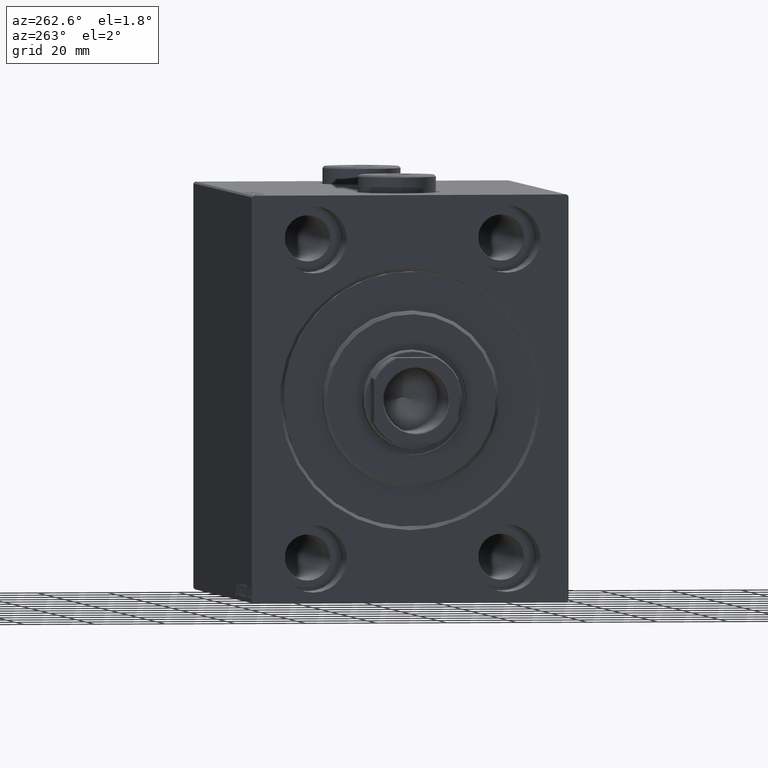
[diagram: clean part render]
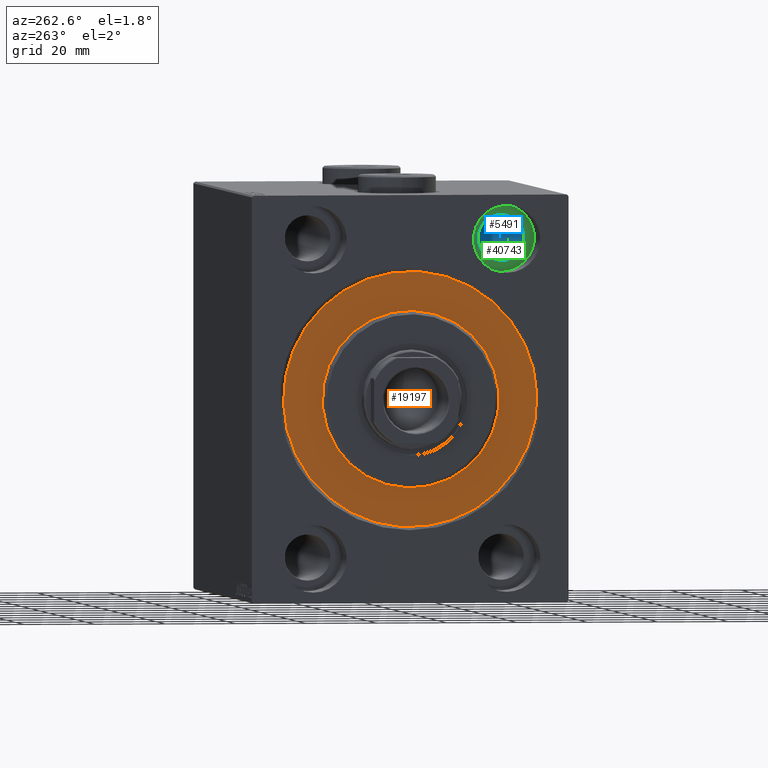
[diagram: same view with three faces highlighted in distinct colors, each labeled with its STEP entity id]
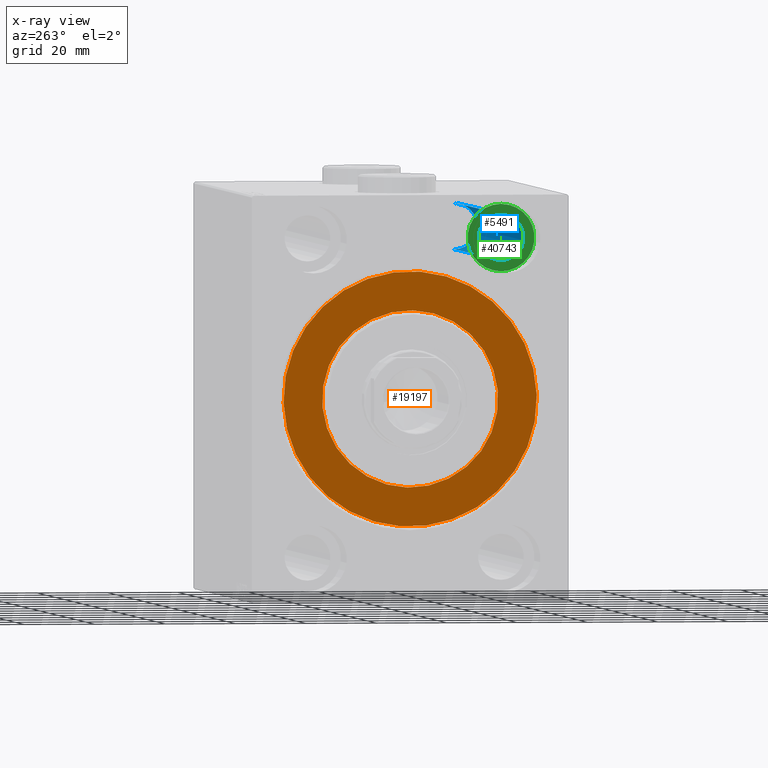
[diagram: x-ray of the same camera — body ghosted, the three highlighted faces saturated]
A machine part, auxiliary view with three faces highlighted in distinct colors.
The next image is the same camera in x-ray (body ghosted, the three faces saturated) — at least one of them is partly hidden behind the body in this view.
Their STEP definitions:

[orange] entity #19197 — the highlighted planar face has unit normal (1, 0, -0).
#1351 = CARTESIAN_POINT ( 'NONE',  ( 0.000000000000000000, 0.000000000000000000, -36.00000000000000000 ) ) ;
#1831 = EDGE_LOOP ( 'NONE', ( #44657, #4949 ) ) ;
#3849 = AXIS2_PLACEMENT_3D ( 'NONE', #42676, #25027, #25259 ) ;
#4949 = ORIENTED_EDGE ( 'NONE', *, *, #32871, .F. ) ;
#5187 = CIRCLE ( 'NONE', #24933, 36.00000000000000000 ) ;
#5871 = ORIENTED_EDGE ( 'NONE', *, *, #9018, .F. ) ;
#7897 = CARTESIAN_POINT ( 'NONE',  ( 0.000000000000000000, 0.000000000000000000, 0.000000000000000000 ) ) ;
#9018 = EDGE_CURVE ( 'NONE', #30583, #28210, #41921, .T. ) ;
#10631 = VERTEX_POINT ( 'NONE', #16671 ) ;
#10942 = CIRCLE ( 'NONE', #35850, 36.00000000000000000 ) ;
#11815 = CARTESIAN_POINT ( 'NONE',  ( 0.000000000000000000, 0.000000000000000000, 0.000000000000000000 ) ) ;
#16390 = CARTESIAN_POINT ( 'NONE',  ( 0.000000000000000000, 0.000000000000000000, 0.000000000000000000 ) ) ;
#16671 = CARTESIAN_POINT ( 'NONE',  ( 0.000000000000000000, 4.408728476930470856E-15, 36.00000000000000000 ) ) ;
#17734 = DIRECTION ( 'NONE',  ( -1.000000000000000000, 0.000000000000000000, 0.000000000000000000 ) ) ;
#18457 = DIRECTION ( 'NONE',  ( 0.000000000000000000, 0.000000000000000000, -1.000000000000000000 ) ) ;
#18596 = FACE_OUTER_BOUND ( 'NONE', #1831, .T. ) ;
#19197 = ADVANCED_FACE ( 'NONE', ( #42461, #18596 ), #35594, .F. ) ;
#21848 = DIRECTION ( 'NONE',  ( 0.000000000000000000, 0.000000000000000000, 1.000000000000000000 ) ) ;
#24683 = AXIS2_PLACEMENT_3D ( 'NONE', #28931, #25036, #25713 ) ;
#24933 = AXIS2_PLACEMENT_3D ( 'NONE', #16390, #30406, #44373 ) ;
#25027 = DIRECTION ( 'NONE',  ( 1.000000000000000000, -0.000000000000000000, 0.000000000000000000 ) ) ;
#25036 = DIRECTION ( 'NONE',  ( -1.000000000000000000, 0.000000000000000000, 0.000000000000000000 ) ) ;
#25259 = DIRECTION ( 'NONE',  ( 0.000000000000000000, 0.000000000000000000, -1.000000000000000000 ) ) ;
#25713 = DIRECTION ( 'NONE',  ( 0.000000000000000000, 0.000000000000000000, 1.000000000000000000 ) ) ;
#28210 = VERTEX_POINT ( 'NONE', #37077 ) ;
#28931 = CARTESIAN_POINT ( 'NONE',  ( 0.000000000000000000, 0.000000000000000000, 0.000000000000000000 ) ) ;
#29325 = AXIS2_PLACEMENT_3D ( 'NONE', #11815, #39333, #18457 ) ;
#29512 = EDGE_CURVE ( 'NONE', #41454, #10631, #10942, .T. ) ;
#30406 = DIRECTION ( 'NONE',  ( -1.000000000000000000, 0.000000000000000000, 0.000000000000000000 ) ) ;
#30583 = VERTEX_POINT ( 'NONE', #34502 ) ;
#32871 = EDGE_CURVE ( 'NONE', #10631, #41454, #5187, .T. ) ;
#34502 = CARTESIAN_POINT ( 'NONE',  ( 0.000000000000000000, 3.061616997868383043E-15, -25.00000000000000000 ) ) ;
#35594 = PLANE ( 'NONE',  #24683 ) ;
#35850 = AXIS2_PLACEMENT_3D ( 'NONE', #7897, #17734, #21848 ) ;
#37077 = CARTESIAN_POINT ( 'NONE',  ( 0.000000000000000000, 0.000000000000000000, 25.00000000000000000 ) ) ;
#38194 = EDGE_CURVE ( 'NONE', #28210, #30583, #42510, .T. ) ;
#39196 = ORIENTED_EDGE ( 'NONE', *, *, #38194, .F. ) ;
#39333 = DIRECTION ( 'NONE',  ( 1.000000000000000000, -0.000000000000000000, 0.000000000000000000 ) ) ;
#41454 = VERTEX_POINT ( 'NONE', #1351 ) ;
#41921 = CIRCLE ( 'NONE', #3849, 25.00000000000000000 ) ;
#42461 = FACE_BOUND ( 'NONE', #43542, .T. ) ;
#42510 = CIRCLE ( 'NONE', #29325, 25.00000000000000000 ) ;
#42676 = CARTESIAN_POINT ( 'NONE',  ( 0.000000000000000000, 0.000000000000000000, 0.000000000000000000 ) ) ;
#43542 = EDGE_LOOP ( 'NONE', ( #39196, #5871 ) ) ;
#44373 = DIRECTION ( 'NONE',  ( 0.000000000000000000, 0.000000000000000000, 1.000000000000000000 ) ) ;
#44657 = ORIENTED_EDGE ( 'NONE', *, *, #29512, .F. ) ;

[blue] entity #5491 — the highlighted cylindrical surface (edge-blend (fillet) strip) has radius 6.5 mm, axis along (-1, -0, -0).
#566 = VERTEX_POINT ( 'NONE', #14095 ) ;
#2037 = EDGE_CURVE ( 'NONE', #26338, #14556, #3408, .T. ) ;
#2577 = AXIS2_PLACEMENT_3D ( 'NONE', #17645, #18099, #21764 ) ;
#2630 = DIRECTION ( 'NONE',  ( -1.000000000000000000, -0.000000000000000000, -0.000000000000000000 ) ) ;
#3408 = LINE ( 'NONE', #17358, #32312 ) ;
#4311 = DIRECTION ( 'NONE',  ( -1.000000000000000000, -0.000000000000000000, -0.000000000000000000 ) ) ;
#4877 = CARTESIAN_POINT ( 'NONE',  ( 12.99999999999999822, -27.49999999999998934, 38.50000000000000711 ) ) ;
#5318 = AXIS2_PLACEMENT_3D ( 'NONE', #40816, #5979, #44706 ) ;
#5491 = ADVANCED_FACE ( 'NONE', ( #42145 ), #7319, .F. ) ;
#5788 = DIRECTION ( 'NONE',  ( -1.000000000000000000, -0.000000000000000000, -0.000000000000000000 ) ) ;
#5979 = DIRECTION ( 'NONE',  ( -1.000000000000000000, 0.000000000000000000, 0.000000000000000000 ) ) ;
#7319 = CYLINDRICAL_SURFACE ( 'NONE', #28747, 6.499999999999999112 ) ;
#7518 = CIRCLE ( 'NONE', #5318, 6.499999999999999112 ) ;
#9129 = EDGE_CURVE ( 'NONE', #14556, #25725, #7518, .T. ) ;
#12586 = EDGE_LOOP ( 'NONE', ( #34530, #41064, #31700, #13747 ) ) ;
#13747 = ORIENTED_EDGE ( 'NONE', *, *, #20893, .F. ) ;
#13946 = CARTESIAN_POINT ( 'NONE',  ( 128.0000000000000000, -27.49999999999998934, 45.00000000000000711 ) ) ;
#14095 = CARTESIAN_POINT ( 'NONE',  ( 115.0000000000000000, -27.49999999999998934, 51.50000000000000711 ) ) ;
#14221 = CARTESIAN_POINT ( 'NONE',  ( 12.99999999999999822, -27.49999999999998934, 51.50000000000000711 ) ) ;
#14556 = VERTEX_POINT ( 'NONE', #4877 ) ;
#14785 = EDGE_CURVE ( 'NONE', #26338, #566, #17925, .T. ) ;
#17358 = CARTESIAN_POINT ( 'NONE',  ( 128.0000000000000000, -27.49999999999998934, 38.50000000000000711 ) ) ;
#17645 = CARTESIAN_POINT ( 'NONE',  ( 115.0000000000000000, -27.49999999999998934, 45.00000000000000711 ) ) ;
#17925 = CIRCLE ( 'NONE', #2577, 6.499999999999999112 ) ;
#17996 = VECTOR ( 'NONE', #2630, 1000.000000000000000 ) ;
#18099 = DIRECTION ( 'NONE',  ( -1.000000000000000000, -0.000000000000000000, -0.000000000000000000 ) ) ;
#20021 = LINE ( 'NONE', #45235, #17996 ) ;
#20893 = EDGE_CURVE ( 'NONE', #566, #25725, #20021, .T. ) ;
#21764 = DIRECTION ( 'NONE',  ( 0.000000000000000000, 0.000000000000000000, -1.000000000000000000 ) ) ;
#25725 = VERTEX_POINT ( 'NONE', #14221 ) ;
#26338 = VERTEX_POINT ( 'NONE', #41174 ) ;
#28747 = AXIS2_PLACEMENT_3D ( 'NONE', #13946, #5788, #35279 ) ;
#31700 = ORIENTED_EDGE ( 'NONE', *, *, #9129, .T. ) ;
#32312 = VECTOR ( 'NONE', #4311, 1000.000000000000000 ) ;
#34530 = ORIENTED_EDGE ( 'NONE', *, *, #14785, .F. ) ;
#35279 = DIRECTION ( 'NONE',  ( 0.000000000000000000, 0.000000000000000000, 1.000000000000000000 ) ) ;
#40816 = CARTESIAN_POINT ( 'NONE',  ( 12.99999999999999822, -27.49999999999998934, 45.00000000000000711 ) ) ;
#41064 = ORIENTED_EDGE ( 'NONE', *, *, #2037, .T. ) ;
#41174 = CARTESIAN_POINT ( 'NONE',  ( 115.0000000000000000, -27.49999999999998934, 38.50000000000000711 ) ) ;
#42145 = FACE_OUTER_BOUND ( 'NONE', #12586, .T. ) ;
#44706 = DIRECTION ( 'NONE',  ( 0.000000000000000000, 0.000000000000000000, 1.000000000000000000 ) ) ;
#45235 = CARTESIAN_POINT ( 'NONE',  ( 128.0000000000000000, -27.49999999999998934, 51.50000000000000711 ) ) ;

[green] entity #40743 — the highlighted planar face has unit normal (-1, 0, 0).
#1251 = CARTESIAN_POINT ( 'NONE',  ( 13.00000000000000000, -27.49999999999998934, 54.50000000000000711 ) ) ;
#2238 = ORIENTED_EDGE ( 'NONE', *, *, #45029, .T. ) ;
#3094 = AXIS2_PLACEMENT_3D ( 'NONE', #3826, #14126, #7495 ) ;
#3826 = CARTESIAN_POINT ( 'NONE',  ( 13.00000000000000000, 0.000000000000000000, 0.000000000000000000 ) ) ;
#3891 = CIRCLE ( 'NONE', #25082, 9.500000000000001776 ) ;
#4877 = CARTESIAN_POINT ( 'NONE',  ( 12.99999999999999822, -27.49999999999998934, 38.50000000000000711 ) ) ;
#4940 = EDGE_CURVE ( 'NONE', #8611, #36551, #3891, .T. ) ;
#5318 = AXIS2_PLACEMENT_3D ( 'NONE', #40816, #5979, #44706 ) ;
#5979 = DIRECTION ( 'NONE',  ( -1.000000000000000000, 0.000000000000000000, 0.000000000000000000 ) ) ;
#7495 = DIRECTION ( 'NONE',  ( 0.000000000000000000, 0.000000000000000000, 1.000000000000000000 ) ) ;
#7518 = CIRCLE ( 'NONE', #5318, 6.499999999999999112 ) ;
#8339 = CARTESIAN_POINT ( 'NONE',  ( 12.99999999999999822, -27.49999999999998934, 45.00000000000000711 ) ) ;
#8611 = VERTEX_POINT ( 'NONE', #1251 ) ;
#9129 = EDGE_CURVE ( 'NONE', #14556, #25725, #7518, .T. ) ;
#9853 = DIRECTION ( 'NONE',  ( 0.000000000000000000, 0.000000000000000000, 1.000000000000000000 ) ) ;
#11079 = ORIENTED_EDGE ( 'NONE', *, *, #9129, .F. ) ;
#11222 = CARTESIAN_POINT ( 'NONE',  ( 13.00000000000000000, -27.49999999999998934, 35.50000000000000711 ) ) ;
#12127 = EDGE_LOOP ( 'NONE', ( #33454, #2238 ) ) ;
#13408 = CIRCLE ( 'NONE', #33189, 9.500000000000001776 ) ;
#14126 = DIRECTION ( 'NONE',  ( -1.000000000000000000, 0.000000000000000000, 0.000000000000000000 ) ) ;
#14221 = CARTESIAN_POINT ( 'NONE',  ( 12.99999999999999822, -27.49999999999998934, 51.50000000000000711 ) ) ;
#14556 = VERTEX_POINT ( 'NONE', #4877 ) ;
#16697 = DIRECTION ( 'NONE',  ( -1.000000000000000000, 0.000000000000000000, 0.000000000000000000 ) ) ;
#17322 = FACE_OUTER_BOUND ( 'NONE', #12127, .T. ) ;
#18852 = DIRECTION ( 'NONE',  ( 0.000000000000000000, 0.000000000000000000, 1.000000000000000000 ) ) ;
#22749 = DIRECTION ( 'NONE',  ( 0.000000000000000000, 0.000000000000000000, 1.000000000000000000 ) ) ;
#23588 = CARTESIAN_POINT ( 'NONE',  ( 13.00000000000000000, -27.49999999999998934, 45.00000000000000711 ) ) ;
#24440 = PLANE ( 'NONE',  #3094 ) ;
#25082 = AXIS2_PLACEMENT_3D ( 'NONE', #23588, #16697, #9853 ) ;
#25725 = VERTEX_POINT ( 'NONE', #14221 ) ;
#26415 = DIRECTION ( 'NONE',  ( -1.000000000000000000, 0.000000000000000000, 0.000000000000000000 ) ) ;
#29863 = DIRECTION ( 'NONE',  ( -1.000000000000000000, 0.000000000000000000, 0.000000000000000000 ) ) ;
#31690 = AXIS2_PLACEMENT_3D ( 'NONE', #8339, #29863, #18852 ) ;
#33189 = AXIS2_PLACEMENT_3D ( 'NONE', #40179, #26415, #22749 ) ;
#33454 = ORIENTED_EDGE ( 'NONE', *, *, #4940, .T. ) ;
#33907 = CIRCLE ( 'NONE', #31690, 6.499999999999999112 ) ;
#36551 = VERTEX_POINT ( 'NONE', #11222 ) ;
#37683 = EDGE_LOOP ( 'NONE', ( #44347, #11079 ) ) ;
#37971 = FACE_BOUND ( 'NONE', #37683, .T. ) ;
#40179 = CARTESIAN_POINT ( 'NONE',  ( 13.00000000000000000, -27.49999999999998934, 45.00000000000000711 ) ) ;
#40743 = ADVANCED_FACE ( 'NONE', ( #37971, #17322 ), #24440, .T. ) ;
#40816 = CARTESIAN_POINT ( 'NONE',  ( 12.99999999999999822, -27.49999999999998934, 45.00000000000000711 ) ) ;
#44258 = EDGE_CURVE ( 'NONE', #25725, #14556, #33907, .T. ) ;
#44347 = ORIENTED_EDGE ( 'NONE', *, *, #44258, .F. ) ;
#44706 = DIRECTION ( 'NONE',  ( 0.000000000000000000, 0.000000000000000000, 1.000000000000000000 ) ) ;
#45029 = EDGE_CURVE ( 'NONE', #36551, #8611, #13408, .T. ) ;